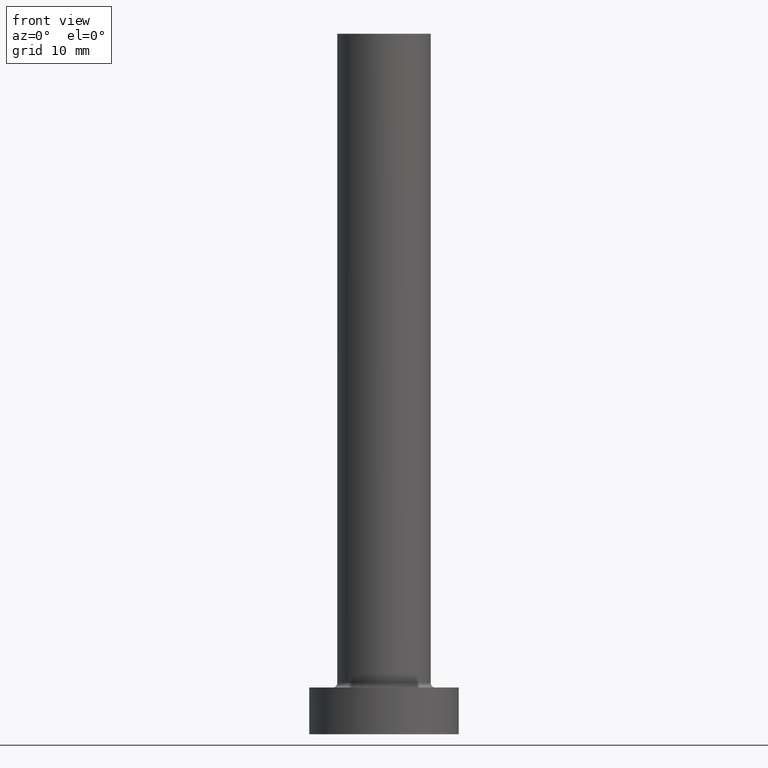
[diagram: clean part render]
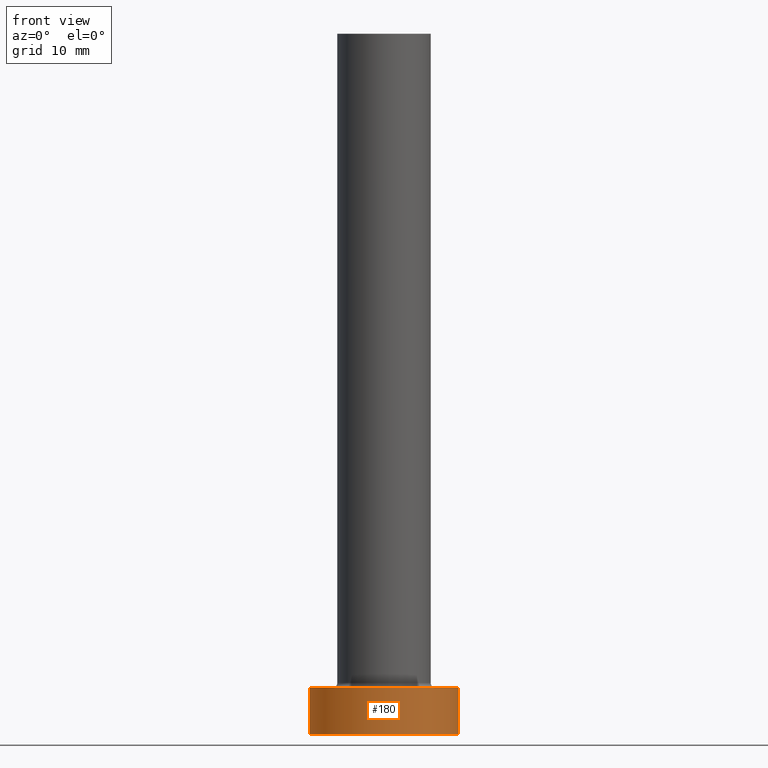
[diagram: same view with one face highlighted and labeled with its STEP entity id]
A machine part, front view. The second image highlights one B-rep face of the part: STEP entity #180.
In plain terms, the highlighted cylindrical surface (partial cylindrical patch) has radius 8 mm, axis along (-0, -0, -1).
Its self-contained STEP definition (entity closure, byte-faithful):
#5 = CARTESIAN_POINT ( 'NONE',  ( 8.000000000000000000, 9.797174393178825657E-16, 0.000000000000000000 ) ) ;
#8 = DIRECTION ( 'NONE',  ( -0.000000000000000000, -0.000000000000000000, -1.000000000000000000 ) ) ;
#20 = EDGE_CURVE ( 'NONE', #262, #96, #54, .T. ) ;
#21 = VERTEX_POINT ( 'NONE', #5 ) ;
#23 = DIRECTION ( 'NONE',  ( -0.000000000000000000, -0.000000000000000000, -1.000000000000000000 ) ) ;
#37 = CARTESIAN_POINT ( 'NONE',  ( 0.000000000000000000, 0.000000000000000000, 5.000000000000000000 ) ) ;
#42 = AXIS2_PLACEMENT_3D ( 'NONE', #37, #8, #108 ) ;
#54 = LINE ( 'NONE', #227, #230 ) ;
#69 = DIRECTION ( 'NONE',  ( 0.000000000000000000, 0.000000000000000000, 1.000000000000000000 ) ) ;
#74 = DIRECTION ( 'NONE',  ( 1.000000000000000000, 0.000000000000000000, 0.000000000000000000 ) ) ;
#83 = CARTESIAN_POINT ( 'NONE',  ( 0.000000000000000000, 0.000000000000000000, 0.000000000000000000 ) ) ;
#96 = VERTEX_POINT ( 'NONE', #250 ) ;
#101 = CIRCLE ( 'NONE', #204, 8.000000000000000000 ) ;
#104 = FACE_OUTER_BOUND ( 'NONE', #340, .T. ) ;
#108 = DIRECTION ( 'NONE',  ( -1.000000000000000000, 0.000000000000000000, 0.000000000000000000 ) ) ;
#110 = CARTESIAN_POINT ( 'NONE',  ( -8.000000000000000000, 0.000000000000000000, 5.000000000000000000 ) ) ;
#111 = ORIENTED_EDGE ( 'NONE', *, *, #299, .T. ) ;
#118 = ORIENTED_EDGE ( 'NONE', *, *, #226, .F. ) ;
#155 = LINE ( 'NONE', #359, #366 ) ;
#180 = ADVANCED_FACE ( 'NONE', ( #104 ), #240, .T. ) ;
#183 = DIRECTION ( 'NONE',  ( -0.000000000000000000, -0.000000000000000000, -1.000000000000000000 ) ) ;
#204 = AXIS2_PLACEMENT_3D ( 'NONE', #83, #323, #281 ) ;
#226 = EDGE_CURVE ( 'NONE', #262, #305, #446, .T. ) ;
#227 = CARTESIAN_POINT ( 'NONE',  ( -8.000000000000000000, 0.000000000000000000, 5.000000000000000000 ) ) ;
#230 = VECTOR ( 'NONE', #23, 1000.000000000000000 ) ;
#240 = CYLINDRICAL_SURFACE ( 'NONE', #42, 8.000000000000000000 ) ;
#250 = CARTESIAN_POINT ( 'NONE',  ( -8.000000000000000000, 0.000000000000000000, 0.000000000000000000 ) ) ;
#253 = CARTESIAN_POINT ( 'NONE',  ( 8.000000000000000000, 9.797174393178825657E-16, 5.000000000000000000 ) ) ;
#262 = VERTEX_POINT ( 'NONE', #110 ) ;
#272 = EDGE_CURVE ( 'NONE', #305, #21, #155, .T. ) ;
#281 = DIRECTION ( 'NONE',  ( 1.000000000000000000, 0.000000000000000000, 0.000000000000000000 ) ) ;
#299 = EDGE_CURVE ( 'NONE', #96, #21, #101, .T. ) ;
#305 = VERTEX_POINT ( 'NONE', #253 ) ;
#323 = DIRECTION ( 'NONE',  ( 0.000000000000000000, 0.000000000000000000, 1.000000000000000000 ) ) ;
#332 = ORIENTED_EDGE ( 'NONE', *, *, #20, .T. ) ;
#340 = EDGE_LOOP ( 'NONE', ( #379, #118, #332, #111 ) ) ;
#359 = CARTESIAN_POINT ( 'NONE',  ( 8.000000000000000000, 9.797174393178825657E-16, 5.000000000000000000 ) ) ;
#366 = VECTOR ( 'NONE', #183, 1000.000000000000000 ) ;
#379 = ORIENTED_EDGE ( 'NONE', *, *, #272, .F. ) ;
#407 = AXIS2_PLACEMENT_3D ( 'NONE', #423, #69, #74 ) ;
#423 = CARTESIAN_POINT ( 'NONE',  ( 0.000000000000000000, 0.000000000000000000, 5.000000000000000000 ) ) ;
#446 = CIRCLE ( 'NONE', #407, 8.000000000000000000 ) ;